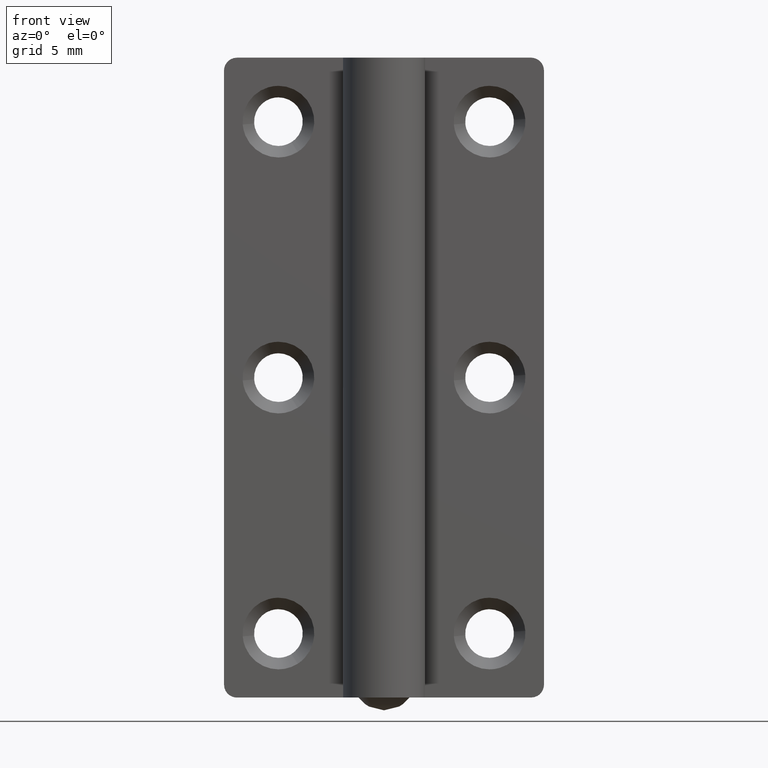
[diagram: clean part render]
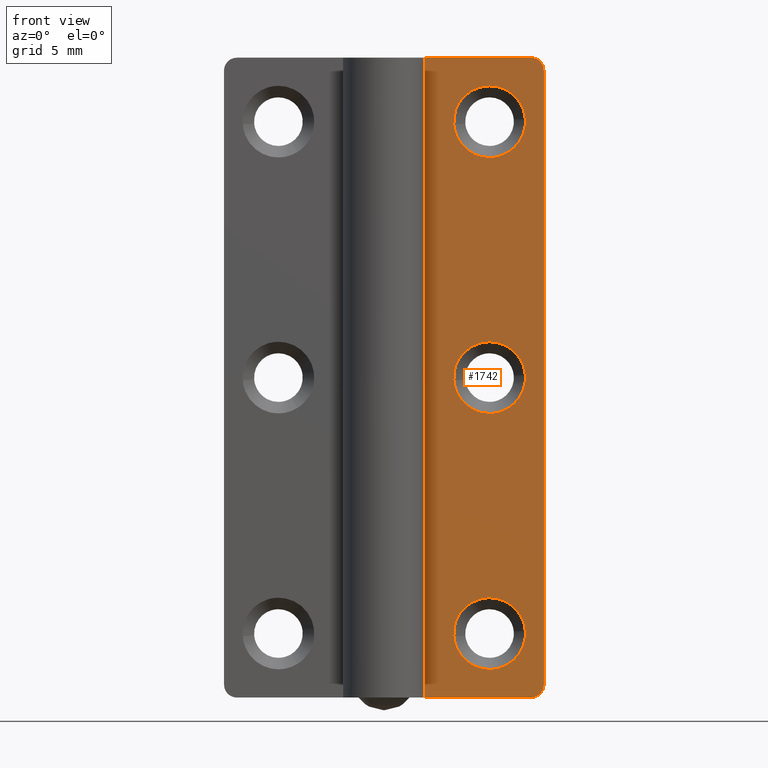
[diagram: same view with one face highlighted and labeled with its STEP entity id]
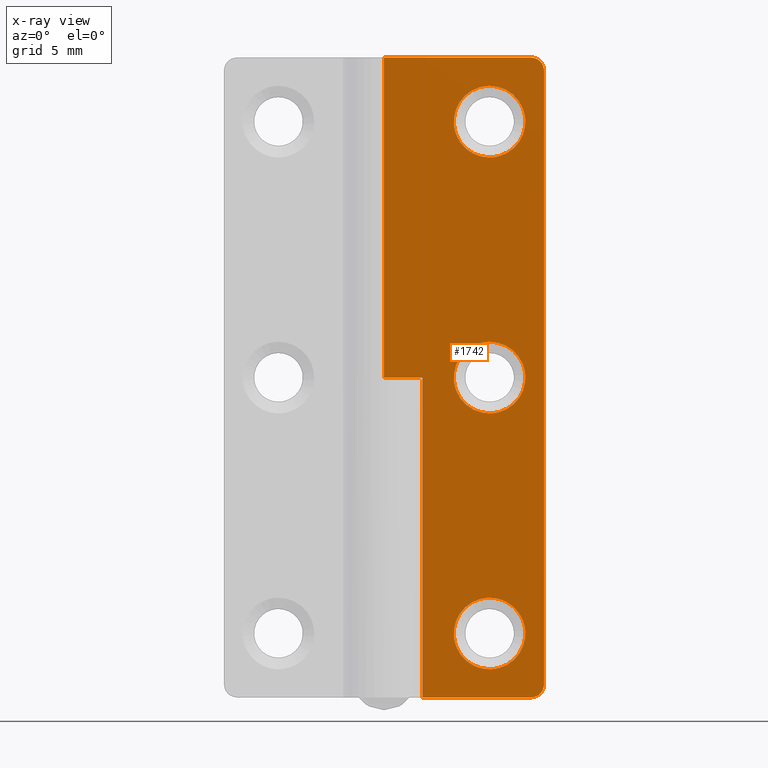
[diagram: x-ray of the same camera — body ghosted, the highlighted face saturated]
A machine part, front view. The second image highlights one B-rep face of the part: STEP entity #1742.
The next image is the same camera in x-ray: the body ghosted, the highlighted face saturated — about 0% of this face is hidden behind the body in this view.
In plain terms, the highlighted face is a freeform B-spline surface patch.
Its self-contained STEP definition (entity closure, byte-faithful):
#557=CARTESIAN_POINT('',(11.041368546347060,1.999999999974804,45.219685469165881));
#558=VERTEX_POINT('',#557);
#564=CARTESIAN_POINT('',(8.250000000000000,2.0,47.800000011920929));
#565=VERTEX_POINT('',#564);
#566=CARTESIAN_POINT('',(8.250000000000000,2.0,47.800000011920929));
#567=CARTESIAN_POINT('',(10.838293387307948,2.0,47.800000011920936));
#568=CARTESIAN_POINT('',(11.041368546347055,1.999999999974804,45.219685469165881));
#576=(BOUNDED_CURVE()B_SPLINE_CURVE(2,(#566,#567,#568),.UNSPECIFIED.,.F.,.U.)B_SPLINE_CURVE_WITH_KNOTS((3,3),(0.0,0.236331300609352),.UNSPECIFIED.)CURVE()GEOMETRIC_REPRESENTATION_ITEM()RATIONAL_B_SPLINE_CURVE((1.0,0.723120658632629,0.969723356122951))REPRESENTATION_ITEM(''));
#577=EDGE_CURVE('',#565,#558,#576,.T.);
#579=CARTESIAN_POINT('',(5.458631453652945,1.999999999974804,44.780314530834097));
#580=VERTEX_POINT('',#579);
#581=CARTESIAN_POINT('',(5.458631453652945,1.999999999974805,44.780314530834112));
#582=CARTESIAN_POINT('',(5.449999988079070,2.000000000000000,44.889987699718610));
#583=CARTESIAN_POINT('',(5.449999988079070,2.0,45.0));
#584=CARTESIAN_POINT('',(5.449999988079070,2.000000000000000,47.800000011920929));
#585=CARTESIAN_POINT('',(8.250000000000000,2.0,47.800000011920929));
#593=(BOUNDED_CURVE()B_SPLINE_CURVE(2,(#581,#582,#583,#584,#585),.UNSPECIFIED.,.F.,.U.)B_SPLINE_CURVE_WITH_KNOTS((3,2,3),(0.736331300609351,0.750000000000000,1.0),.UNSPECIFIED.)CURVE()GEOMETRIC_REPRESENTATION_ITEM()RATIONAL_B_SPLINE_CURVE((0.969723356122949,0.983986122553918,1.0,0.707106781186548,1.0))REPRESENTATION_ITEM(''));
#594=EDGE_CURVE('',#580,#565,#593,.T.);
#631=CARTESIAN_POINT('',(8.250000000000000,2.0,42.199999988079057));
#632=VERTEX_POINT('',#631);
#633=CARTESIAN_POINT('',(8.250000000000000,2.0,42.199999988079057));
#634=CARTESIAN_POINT('',(5.661706612692063,2.000000000000000,42.199999988079071));
#635=CARTESIAN_POINT('',(5.458631453652945,1.999999999974805,44.780314530834112));
#643=(BOUNDED_CURVE()B_SPLINE_CURVE(2,(#633,#634,#635),.UNSPECIFIED.,.F.,.U.)B_SPLINE_CURVE_WITH_KNOTS((3,3),(0.500000000000000,0.736331300609351),.UNSPECIFIED.)CURVE()GEOMETRIC_REPRESENTATION_ITEM()RATIONAL_B_SPLINE_CURVE((1.0,0.723120658632630,0.969723356122949))REPRESENTATION_ITEM(''));
#644=EDGE_CURVE('',#632,#580,#643,.T.);
#646=CARTESIAN_POINT('',(11.041368546347055,1.999999999974805,45.219685469165888));
#647=CARTESIAN_POINT('',(11.050000011920927,2.000000000000000,45.110012300281369));
#648=CARTESIAN_POINT('',(11.050000011920931,2.0,45.0));
#649=CARTESIAN_POINT('',(11.050000011920931,2.000000000000000,42.199999988079057));
#650=CARTESIAN_POINT('',(8.250000000000000,2.0,42.199999988079057));
#658=(BOUNDED_CURVE()B_SPLINE_CURVE(2,(#646,#647,#648,#649,#650),.UNSPECIFIED.,.F.,.U.)B_SPLINE_CURVE_WITH_KNOTS((3,2,3),(0.236331300609352,0.250000000000000,0.500000000000000),.UNSPECIFIED.)CURVE()GEOMETRIC_REPRESENTATION_ITEM()RATIONAL_B_SPLINE_CURVE((0.969723356122951,0.983986122553919,1.0,0.707106781186548,1.0))REPRESENTATION_ITEM(''));
#659=EDGE_CURVE('',#558,#632,#658,.T.);
#889=CARTESIAN_POINT('',(11.041368546347060,1.999999999974805,25.219685469165888));
#890=VERTEX_POINT('',#889);
#896=CARTESIAN_POINT('',(8.250000000000000,2.0,27.800000011920929));
#897=VERTEX_POINT('',#896);
#898=CARTESIAN_POINT('',(8.250000000000000,2.0,27.800000011920929));
#899=CARTESIAN_POINT('',(10.838293387307939,2.000000000000000,27.800000011920940));
#900=CARTESIAN_POINT('',(11.041368546347060,1.999999999974805,25.219685469165888));
#908=(BOUNDED_CURVE()B_SPLINE_CURVE(2,(#898,#899,#900),.UNSPECIFIED.,.F.,.U.)B_SPLINE_CURVE_WITH_KNOTS((3,3),(0.0,0.236331300609352),.UNSPECIFIED.)CURVE()GEOMETRIC_REPRESENTATION_ITEM()RATIONAL_B_SPLINE_CURVE((1.0,0.723120658632630,0.969723356122949))REPRESENTATION_ITEM(''));
#909=EDGE_CURVE('',#897,#890,#908,.T.);
#911=CARTESIAN_POINT('',(5.458631453652946,1.999999999974805,24.780314530834119));
#912=VERTEX_POINT('',#911);
#913=CARTESIAN_POINT('',(5.458631453652945,1.999999999974805,24.780314530834119));
#914=CARTESIAN_POINT('',(5.449999988079070,2.000000000000000,24.889987699718628));
#915=CARTESIAN_POINT('',(5.449999988079070,2.0,25.0));
#916=CARTESIAN_POINT('',(5.449999988079070,2.000000000000000,27.800000011920940));
#917=CARTESIAN_POINT('',(8.250000000000000,2.0,27.800000011920929));
#925=(BOUNDED_CURVE()B_SPLINE_CURVE(2,(#913,#914,#915,#916,#917),.UNSPECIFIED.,.F.,.U.)B_SPLINE_CURVE_WITH_KNOTS((3,2,3),(0.736331300609352,0.750000000000000,1.0),.UNSPECIFIED.)CURVE()GEOMETRIC_REPRESENTATION_ITEM()RATIONAL_B_SPLINE_CURVE((0.969723356122950,0.983986122553918,1.0,0.707106781186548,1.0))REPRESENTATION_ITEM(''));
#926=EDGE_CURVE('',#912,#897,#925,.T.);
#963=CARTESIAN_POINT('',(8.250000000000000,2.0,22.199999988079071));
#964=VERTEX_POINT('',#963);
#965=CARTESIAN_POINT('',(8.250000000000000,2.0,22.199999988079071));
#966=CARTESIAN_POINT('',(5.661706612692063,2.000000000000000,22.199999988079071));
#967=CARTESIAN_POINT('',(5.458631453652946,1.999999999974805,24.780314530834108));
#975=(BOUNDED_CURVE()B_SPLINE_CURVE(2,(#965,#966,#967),.UNSPECIFIED.,.F.,.U.)B_SPLINE_CURVE_WITH_KNOTS((3,3),(0.500000000000000,0.736331300609351),.UNSPECIFIED.)CURVE()GEOMETRIC_REPRESENTATION_ITEM()RATIONAL_B_SPLINE_CURVE((1.0,0.723120658632630,0.969723356122949))REPRESENTATION_ITEM(''));
#976=EDGE_CURVE('',#964,#912,#975,.T.);
#978=CARTESIAN_POINT('',(11.041368546347051,1.999999999974805,25.219685469165896));
#979=CARTESIAN_POINT('',(11.050000011920929,2.000000000000000,25.110012300281372));
#980=CARTESIAN_POINT('',(11.050000011920931,2.0,25.0));
#981=CARTESIAN_POINT('',(11.050000011920931,2.000000000000000,22.199999988079078));
#982=CARTESIAN_POINT('',(8.250000000000000,2.0,22.199999988079071));
#990=(BOUNDED_CURVE()B_SPLINE_CURVE(2,(#978,#979,#980,#981,#982),.UNSPECIFIED.,.F.,.U.)B_SPLINE_CURVE_WITH_KNOTS((3,2,3),(0.236331300609351,0.250000000000000,0.500000000000000),.UNSPECIFIED.)CURVE()GEOMETRIC_REPRESENTATION_ITEM()RATIONAL_B_SPLINE_CURVE((0.969723356122949,0.983986122553918,1.0,0.707106781186548,1.0))REPRESENTATION_ITEM(''));
#991=EDGE_CURVE('',#890,#964,#990,.T.);
#1221=CARTESIAN_POINT('',(11.041368546347060,1.999999999974805,5.219685469165889));
#1222=VERTEX_POINT('',#1221);
#1228=CARTESIAN_POINT('',(8.250000000000000,2.0,7.800000011920930));
#1229=VERTEX_POINT('',#1228);
#1230=CARTESIAN_POINT('',(8.250000000000000,2.0,7.800000011920930));
#1231=CARTESIAN_POINT('',(10.838293387307941,2.0,7.800000011920930));
#1232=CARTESIAN_POINT('',(11.041368546347057,1.999999999974805,5.219685469165889));
#1240=(BOUNDED_CURVE()B_SPLINE_CURVE(2,(#1230,#1231,#1232),.UNSPECIFIED.,.F.,.U.)B_SPLINE_CURVE_WITH_KNOTS((3,3),(0.0,0.236331300609352),.UNSPECIFIED.)CURVE()GEOMETRIC_REPRESENTATION_ITEM()RATIONAL_B_SPLINE_CURVE((1.0,0.723120658632630,0.969723356122950))REPRESENTATION_ITEM(''));
#1241=EDGE_CURVE('',#1229,#1222,#1240,.T.);
#1243=CARTESIAN_POINT('',(5.458631453652945,1.999999999974805,4.780314530834113));
#1244=VERTEX_POINT('',#1243);
#1245=CARTESIAN_POINT('',(5.458631453652945,1.999999999974804,4.780314530834113));
#1246=CARTESIAN_POINT('',(5.449999988079070,2.000000000000000,4.889987699718629));
#1247=CARTESIAN_POINT('',(5.449999988079070,2.0,5.0));
#1248=CARTESIAN_POINT('',(5.449999988079070,2.000000000000000,7.800000011920929));
#1249=CARTESIAN_POINT('',(8.250000000000000,2.0,7.800000011920930));
#1257=(BOUNDED_CURVE()B_SPLINE_CURVE(2,(#1245,#1246,#1247,#1248,#1249),.UNSPECIFIED.,.F.,.U.)B_SPLINE_CURVE_WITH_KNOTS((3,2,3),(0.736331300609352,0.750000000000000,1.0),.UNSPECIFIED.)CURVE()GEOMETRIC_REPRESENTATION_ITEM()RATIONAL_B_SPLINE_CURVE((0.969723356122950,0.983986122553918,1.0,0.707106781186548,1.0))REPRESENTATION_ITEM(''));
#1258=EDGE_CURVE('',#1244,#1229,#1257,.T.);
#1295=CARTESIAN_POINT('',(8.250000000000000,2.0,2.199999988079070));
#1296=VERTEX_POINT('',#1295);
#1297=CARTESIAN_POINT('',(8.250000000000000,2.0,2.199999988079070));
#1298=CARTESIAN_POINT('',(5.661706612692063,2.000000000000000,2.199999988079071));
#1299=CARTESIAN_POINT('',(5.458631453652945,1.999999999974805,4.780314530834113));
#1307=(BOUNDED_CURVE()B_SPLINE_CURVE(2,(#1297,#1298,#1299),.UNSPECIFIED.,.F.,.U.)B_SPLINE_CURVE_WITH_KNOTS((3,3),(0.500000000000000,0.736331300609351),.UNSPECIFIED.)CURVE()GEOMETRIC_REPRESENTATION_ITEM()RATIONAL_B_SPLINE_CURVE((1.0,0.723120658632630,0.969723356122949))REPRESENTATION_ITEM(''));
#1308=EDGE_CURVE('',#1296,#1244,#1307,.T.);
#1310=CARTESIAN_POINT('',(11.041368546347055,1.999999999974805,5.219685469165889));
#1311=CARTESIAN_POINT('',(11.050000011920934,2.000000000000000,5.110012300281373));
#1312=CARTESIAN_POINT('',(11.050000011920931,2.0,5.0));
#1313=CARTESIAN_POINT('',(11.050000011920931,2.000000000000000,2.199999988079070));
#1314=CARTESIAN_POINT('',(8.250000000000000,2.0,2.199999988079070));
#1322=(BOUNDED_CURVE()B_SPLINE_CURVE(2,(#1310,#1311,#1312,#1313,#1314),.UNSPECIFIED.,.F.,.U.)B_SPLINE_CURVE_WITH_KNOTS((3,2,3),(0.236331300609352,0.250000000000000,0.500000000000000),.UNSPECIFIED.)CURVE()GEOMETRIC_REPRESENTATION_ITEM()RATIONAL_B_SPLINE_CURVE((0.969723356122950,0.983986122553918,1.0,0.707106781186548,1.0))REPRESENTATION_ITEM(''));
#1323=EDGE_CURVE('',#1222,#1296,#1322,.T.);
#1334=CARTESIAN_POINT('',(3.0,2.0,0.0));
#1335=VERTEX_POINT('',#1334);
#1336=CARTESIAN_POINT('',(3.0,2.0,25.0));
#1337=VERTEX_POINT('',#1336);
#1338=CARTESIAN_POINT('',(3.0,2.0,0.0));
#1339=CARTESIAN_POINT('',(3.0,2.0,25.0));
#1340=QUASI_UNIFORM_CURVE('',1,(#1338,#1339),.UNSPECIFIED.,.F.,.U.);
#1341=EDGE_CURVE('',#1335,#1337,#1340,.T.);
#1406=CARTESIAN_POINT('',(0.0,2.0,25.0));
#1407=VERTEX_POINT('',#1406);
#1408=CARTESIAN_POINT('',(3.0,2.0,25.0));
#1409=CARTESIAN_POINT('',(0.0,2.0,25.0));
#1410=QUASI_UNIFORM_CURVE('',1,(#1408,#1409),.UNSPECIFIED.,.F.,.U.);
#1411=EDGE_CURVE('',#1337,#1407,#1410,.T.);
#1449=CARTESIAN_POINT('',(12.500000000000000,2.0,49.0));
#1450=VERTEX_POINT('',#1449);
#1451=CARTESIAN_POINT('',(11.500000000000000,2.0,50.0));
#1452=VERTEX_POINT('',#1451);
#1453=CARTESIAN_POINT('',(12.500000000000000,2.0,49.0));
#1454=CARTESIAN_POINT('',(12.500000000000000,2.000000000000000,50.0));
#1455=CARTESIAN_POINT('',(11.500000000000000,2.0,50.0));
#1463=(BOUNDED_CURVE()B_SPLINE_CURVE(2,(#1453,#1454,#1455),.UNSPECIFIED.,.F.,.U.)CURVE()GEOMETRIC_REPRESENTATION_ITEM()QUASI_UNIFORM_CURVE()RATIONAL_B_SPLINE_CURVE((1.0,0.707106781186548,1.0))REPRESENTATION_ITEM(''));
#1464=EDGE_CURVE('',#1450,#1452,#1463,.T.);
#1510=CARTESIAN_POINT('',(11.500000000000000,2.0,0.0));
#1511=VERTEX_POINT('',#1510);
#1512=CARTESIAN_POINT('',(12.500000000000000,2.0,1.0));
#1513=VERTEX_POINT('',#1512);
#1514=CARTESIAN_POINT('',(11.500000000000000,2.0,0.0));
#1515=CARTESIAN_POINT('',(12.500000000000000,2.000000000000000,0.0));
#1516=CARTESIAN_POINT('',(12.500000000000000,2.0,1.0));
#1524=(BOUNDED_CURVE()B_SPLINE_CURVE(2,(#1514,#1515,#1516),.UNSPECIFIED.,.F.,.U.)CURVE()GEOMETRIC_REPRESENTATION_ITEM()QUASI_UNIFORM_CURVE()RATIONAL_B_SPLINE_CURVE((1.0,0.707106781186548,1.0))REPRESENTATION_ITEM(''));
#1525=EDGE_CURVE('',#1511,#1513,#1524,.T.);
#1562=CARTESIAN_POINT('',(-3.673819E-016,2.0,50.0));
#1563=VERTEX_POINT('',#1562);
#1564=CARTESIAN_POINT('',(11.500000000000000,2.0,50.0));
#1565=CARTESIAN_POINT('',(-3.673819E-016,2.0,50.0));
#1566=QUASI_UNIFORM_CURVE('',1,(#1564,#1565),.UNSPECIFIED.,.F.,.U.);
#1567=EDGE_CURVE('',#1452,#1563,#1566,.T.);
#1639=CARTESIAN_POINT('',(11.500000000000000,2.0,0.0));
#1640=CARTESIAN_POINT('',(3.0,2.0,0.0));
#1641=QUASI_UNIFORM_CURVE('',1,(#1639,#1640),.UNSPECIFIED.,.F.,.U.);
#1642=EDGE_CURVE('',#1511,#1335,#1641,.T.);
#1658=CARTESIAN_POINT('',(12.500000000000000,2.0,1.0));
#1659=CARTESIAN_POINT('',(12.500000000000000,2.0,49.0));
#1660=QUASI_UNIFORM_CURVE('',1,(#1658,#1659),.UNSPECIFIED.,.F.,.U.);
#1661=EDGE_CURVE('',#1513,#1450,#1660,.T.);
#1705=CARTESIAN_POINT('',(-0.624374975772575,2.0,-2.497499903090299));
#1706=CARTESIAN_POINT('',(-0.624374975772575,2.0,52.497501244194808));
#1707=CARTESIAN_POINT('',(13.124375311048700,2.0,-2.497499903090299));
#1708=CARTESIAN_POINT('',(13.124375311048700,2.0,52.497501244194808));
#1709=B_SPLINE_SURFACE_WITH_KNOTS('',1,1,((#1705,#1707),(#1706,#1708)),.UNSPECIFIED.,.F.,.F.,.U.,(2,2),(2,2),(0.0,54.995001147285109),(0.0,13.748750286821281),.UNSPECIFIED.);
#1710=ORIENTED_EDGE('',*,*,#1411,.F.);
#1711=ORIENTED_EDGE('',*,*,#1341,.F.);
#1712=ORIENTED_EDGE('',*,*,#1642,.F.);
#1713=ORIENTED_EDGE('',*,*,#1525,.T.);
#1714=ORIENTED_EDGE('',*,*,#1661,.T.);
#1715=ORIENTED_EDGE('',*,*,#1464,.T.);
#1716=ORIENTED_EDGE('',*,*,#1567,.T.);
#1717=CARTESIAN_POINT('',(0.0,2.0,25.0));
#1718=CARTESIAN_POINT('',(-3.673819E-016,2.0,50.0));
#1719=QUASI_UNIFORM_CURVE('',1,(#1717,#1718),.UNSPECIFIED.,.F.,.U.);
#1720=EDGE_CURVE('',#1407,#1563,#1719,.T.);
#1721=ORIENTED_EDGE('',*,*,#1720,.F.);
#1722=EDGE_LOOP('',(#1710,#1711,#1712,#1713,#1714,#1715,#1716,#1721));
#1723=FACE_OUTER_BOUND('',#1722,.T.);
#1724=ORIENTED_EDGE('',*,*,#1308,.T.);
#1725=ORIENTED_EDGE('',*,*,#1258,.T.);
#1726=ORIENTED_EDGE('',*,*,#1241,.T.);
#1727=ORIENTED_EDGE('',*,*,#1323,.T.);
#1728=EDGE_LOOP('',(#1724,#1725,#1726,#1727));
#1729=FACE_BOUND('',#1728,.T.);
#1730=ORIENTED_EDGE('',*,*,#976,.T.);
#1731=ORIENTED_EDGE('',*,*,#926,.T.);
#1732=ORIENTED_EDGE('',*,*,#909,.T.);
#1733=ORIENTED_EDGE('',*,*,#991,.T.);
#1734=EDGE_LOOP('',(#1730,#1731,#1732,#1733));
#1735=FACE_BOUND('',#1734,.T.);
#1736=ORIENTED_EDGE('',*,*,#644,.T.);
#1737=ORIENTED_EDGE('',*,*,#594,.T.);
#1738=ORIENTED_EDGE('',*,*,#577,.T.);
#1739=ORIENTED_EDGE('',*,*,#659,.T.);
#1740=EDGE_LOOP('',(#1736,#1737,#1738,#1739));
#1741=FACE_BOUND('',#1740,.T.);
#1742=ADVANCED_FACE('',(#1723,#1729,#1735,#1741),#1709,.F.);